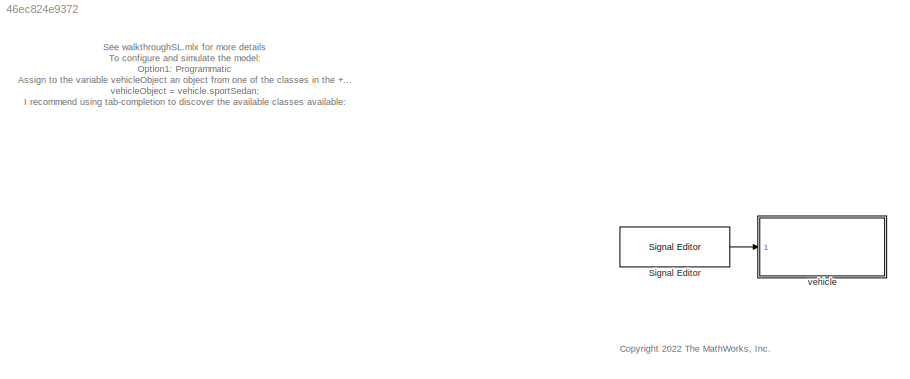
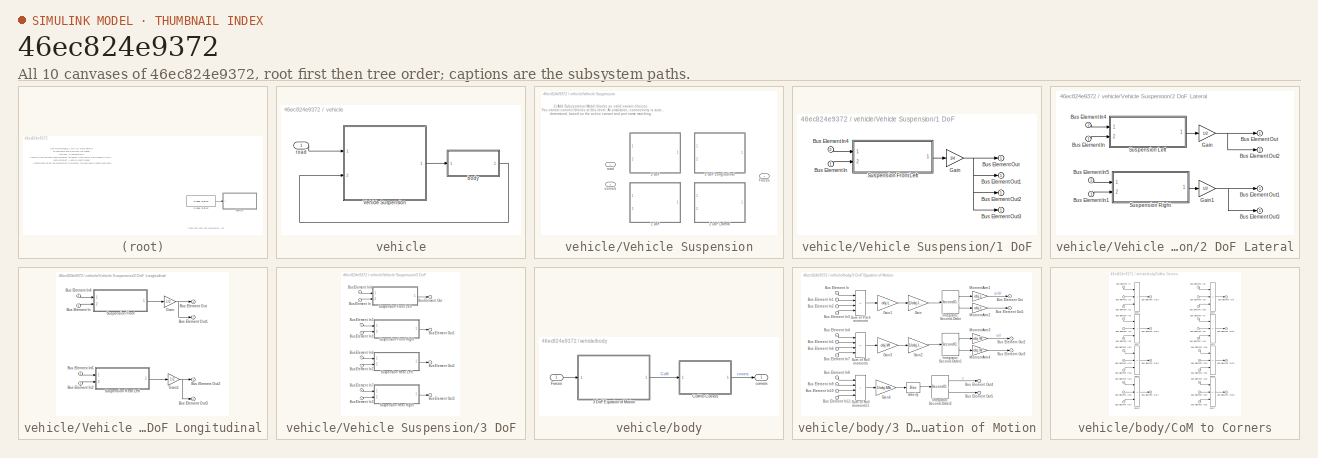
[diagram: thumbnail index - all 10 canvases of the model, root first then tree order]
MODEL slx_46ec824e9372
KIND model
CONFIG AbsTol = auto
CONFIG EnableMultiTasking = off
CONFIG FixedStep = auto
CONFIG MaxStep = 0.01
CONFIG MinStep = auto
CONFIG PreLoadFcn = vehicleObject = vehicle.sportSedan;\n
CONFIG RelTol = 1e-3
CONFIG SampleTimeConstraint = Unconstrained
CONFIG SolverName = VariableStepAuto
CONFIG StartTime = 0.0
CONFIG StopTime = 20
BLOCK [Reference] Signal Editor  REF=SignalEditorBlockLib/Signal Editor
  Ports = [0, 1]
  SourceBlock = SignalEditorBlockLib/Signal Editor
  SourceProductBaseCode = SL
  SourceType = SignalEditor
  UserDataPersistent = on
BLOCK [SubSystem] vehicle
  Ports = [1]
  RequestExecContextInheritance = off
BLOCK [SubSystem] vehicle/Vehicle Suspension
  AncestorBlock = suspensionLib/Vehicel Suspension
  LabelModeActiveChoice = suspension.threeDof
  Ports = [2, 1]
  RequestExecContextInheritance = off
  Variant = on
  VariantControlMode = label
BLOCK [SubSystem] vehicle/Vehicle Suspension/1 DoF
  Ports = [2, 1]
  RequestExecContextInheritance = off
  VariantControl = suspension.oneDof
BLOCK [Inport] vehicle/Vehicle Suspension/1 DoF/Bus Element In
BLOCK [Inport] vehicle/Vehicle Suspension/1 DoF/Bus Element In4
  Port = 2
BLOCK [Outport] vehicle/Vehicle Suspension/1 DoF/Bus Element Out
BLOCK [Outport] vehicle/Vehicle Suspension/1 DoF/Bus Element Out1
BLOCK [Outport] vehicle/Vehicle Suspension/1 DoF/Bus Element Out2
BLOCK [Outport] vehicle/Vehicle Suspension/1 DoF/Bus Element Out3
BLOCK [Gain] vehicle/Vehicle Suspension/1 DoF/Gain
  Gain = 1/4
BLOCK [SubSystem] vehicle/Vehicle Suspension/1 DoF/Suspension Front Left
  AttributesFormatString = %<obj>
  Ports = [2, 1]
  ReferencedSubsystem = suspension_ss
  RequestExecContextInheritance = off
  obj = obj.Suspension
BLOCK [SubSystem] vehicle/Vehicle Suspension/2 DoF Lateral
  Ports = [2, 1]
  RequestExecContextInheritance = off
  VariantControl = suspension.twoDofLateral
BLOCK [Inport] vehicle/Vehicle Suspension/2 DoF Lateral/Bus Element In
BLOCK [Inport] vehicle/Vehicle Suspension/2 DoF Lateral/Bus Element In1
BLOCK [Inport] vehicle/Vehicle Suspension/2 DoF Lateral/Bus Element In4
  Port = 2
BLOCK [Inport] vehicle/Vehicle Suspension/2 DoF Lateral/Bus Element In5
  Port = 2
BLOCK [Outport] vehicle/Vehicle Suspension/2 DoF Lateral/Bus Element Out
BLOCK [Outport] vehicle/Vehicle Suspension/2 DoF Lateral/Bus Element Out1
BLOCK [Outport] vehicle/Vehicle Suspension/2 DoF Lateral/Bus Element Out2
BLOCK [Outport] vehicle/Vehicle Suspension/2 DoF Lateral/Bus Element Out3
BLOCK [Gain] vehicle/Vehicle Suspension/2 DoF Lateral/Gain
  Gain = 1/2
BLOCK [Gain] vehicle/Vehicle Suspension/2 DoF Lateral/Gain1
  Gain = 1/2
BLOCK [SubSystem] vehicle/Vehicle Suspension/2 DoF Lateral/Suspension Left
  AttributesFormatString = %<obj>
  Ports = [2, 1]
  ReferencedSubsystem = suspension_ss
  RequestExecContextInheritance = off
  obj = obj.Left
BLOCK [SubSystem] vehicle/Vehicle Suspension/2 DoF Lateral/Suspension Right
  AttributesFormatString = %<obj>
  Ports = [2, 1]
  ReferencedSubsystem = suspension_ss
  RequestExecContextInheritance = off
  obj = obj.Right
BLOCK [SubSystem] vehicle/Vehicle Suspension/2 DoF Longitudinal
  Ports = [2, 1]
  RequestExecContextInheritance = off
  VariantControl = suspension.twoDofLongitudinal
BLOCK [Inport] vehicle/Vehicle Suspension/2 DoF Longitudinal/Bus Element In
BLOCK [Inport] vehicle/Vehicle Suspension/2 DoF Longitudinal/Bus Element In2
BLOCK [Inport] vehicle/Vehicle Suspension/2 DoF Longitudinal/Bus Element In4
  Port = 2
BLOCK [Inport] vehicle/Vehicle Suspension/2 DoF Longitudinal/Bus Element In6
  Port = 2
BLOCK [Outport] vehicle/Vehicle Suspension/2 DoF Longitudinal/Bus Element Out
BLOCK [Outport] vehicle/Vehicle Suspension/2 DoF Longitudinal/Bus Element Out1
BLOCK [Outport] vehicle/Vehicle Suspension/2 DoF Longitudinal/Bus Element Out2
BLOCK [Outport] vehicle/Vehicle Suspension/2 DoF Longitudinal/Bus Element Out3
BLOCK [Gain] vehicle/Vehicle Suspension/2 DoF Longitudinal/Gain
  Gain = 1/2
BLOCK [Gain] vehicle/Vehicle Suspension/2 DoF Longitudinal/Gain1
  Gain = 1/2
BLOCK [SubSystem] vehicle/Vehicle Suspension/2 DoF Longitudinal/Suspension Front
  AttributesFormatString = %<obj>
  Ports = [2, 1]
  ReferencedSubsystem = suspension_ss
  RequestExecContextInheritance = off
  obj = obj.Front
BLOCK [SubSystem] vehicle/Vehicle Suspension/2 DoF Longitudinal/Suspension Rear Left
  AttributesFormatString = %<obj>
  Ports = [2, 1]
  ReferencedSubsystem = suspension_ss
  RequestExecContextInheritance = off
  obj = obj.Rear
BLOCK [SubSystem] vehicle/Vehicle Suspension/3 DoF
  Ports = [2, 1]
  RequestExecContextInheritance = off
  VariantControl = suspension.threeDof
BLOCK [Inport] vehicle/Vehicle Suspension/3 DoF/Bus Element In
BLOCK [Inport] vehicle/Vehicle Suspension/3 DoF/Bus Element In1
BLOCK [Inport] vehicle/Vehicle Suspension/3 DoF/Bus Element In2
BLOCK [Inport] vehicle/Vehicle Suspension/3 DoF/Bus Element In3
BLOCK [Inport] vehicle/Vehicle Suspension/3 DoF/Bus Element In4
  Port = 2
BLOCK [Inport] vehicle/Vehicle Suspension/3 DoF/Bus Element In5
  Port = 2
BLOCK [Inport] vehicle/Vehicle Suspension/3 DoF/Bus Element In6
  Port = 2
BLOCK [Inport] vehicle/Vehicle Suspension/3 DoF/Bus Element In7
  Port = 2
BLOCK [Outport] vehicle/Vehicle Suspension/3 DoF/Bus Element Out
BLOCK [Outport] vehicle/Vehicle Suspension/3 DoF/Bus Element Out1
BLOCK [Outport] vehicle/Vehicle Suspension/3 DoF/Bus Element Out2
BLOCK [Outport] vehicle/Vehicle Suspension/3 DoF/Bus Element Out3
BLOCK [SubSystem] vehicle/Vehicle Suspension/3 DoF/Suspension Front Left
  AttributesFormatString = %<obj>
  Ports = [2, 1]
  ReferencedSubsystem = suspension_ss
  RequestExecContextInheritance = off
  obj = obj.FrontLeft
BLOCK [SubSystem] vehicle/Vehicle Suspension/3 DoF/Suspension Front Right
  AttributesFormatString = %<obj>
  Ports = [2, 1]
  ReferencedSubsystem = suspension_ss
  RequestExecContextInheritance = off
  obj = obj.FrontRight
BLOCK [SubSystem] vehicle/Vehicle Suspension/3 DoF/Suspension Rear Left
  AttributesFormatString = %<obj>
  Ports = [2, 1]
  ReferencedSubsystem = suspension_ss
  RequestExecContextInheritance = off
  obj = obj.RearLeft
BLOCK [SubSystem] vehicle/Vehicle Suspension/3 DoF/Suspension Rear Right
  AttributesFormatString = %<obj>
  Ports = [2, 1]
  ReferencedSubsystem = suspension_ss
  RequestExecContextInheritance = off
  obj = obj.RearRight
BLOCK [Outport] vehicle/Vehicle Suspension/Forces
BLOCK [Inport] vehicle/Vehicle Suspension/corners
  Port = 2
BLOCK [Inport] vehicle/Vehicle Suspension/road
BLOCK [SubSystem] vehicle/body
  Ports = [1, 1]
  RequestExecContextInheritance = off
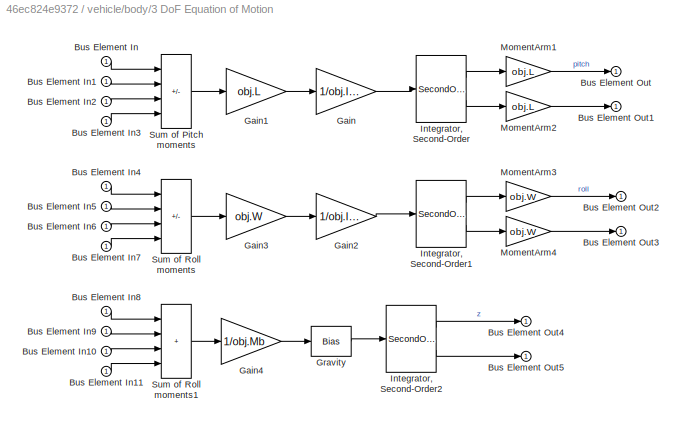
BLOCK [SubSystem] vehicle/body/3 DoF Equation of Motion
  Ports = [1, 1]
  RequestExecContextInheritance = off
BLOCK [Inport] vehicle/body/3 DoF Equation of Motion/Bus Element In
BLOCK [Inport] vehicle/body/3 DoF Equation of Motion/Bus Element In1
BLOCK [Inport] vehicle/body/3 DoF Equation of Motion/Bus Element In10
BLOCK [Inport] vehicle/body/3 DoF Equation of Motion/Bus Element In11
BLOCK [Inport] vehicle/body/3 DoF Equation of Motion/Bus Element In2
BLOCK [Inport] vehicle/body/3 DoF Equation of Motion/Bus Element In3
BLOCK [Inport] vehicle/body/3 DoF Equation of Motion/Bus Element In4
BLOCK [Inport] vehicle/body/3 DoF Equation of Motion/Bus Element In5
BLOCK [Inport] vehicle/body/3 DoF Equation of Motion/Bus Element In6
BLOCK [Inport] vehicle/body/3 DoF Equation of Motion/Bus Element In7
BLOCK [Inport] vehicle/body/3 DoF Equation of Motion/Bus Element In8
BLOCK [Inport] vehicle/body/3 DoF Equation of Motion/Bus Element In9
BLOCK [Outport] vehicle/body/3 DoF Equation of Motion/Bus Element Out
BLOCK [Outport] vehicle/body/3 DoF Equation of Motion/Bus Element Out1
BLOCK [Outport] vehicle/body/3 DoF Equation of Motion/Bus Element Out2
BLOCK [Outport] vehicle/body/3 DoF Equation of Motion/Bus Element Out3
BLOCK [Outport] vehicle/body/3 DoF Equation of Motion/Bus Element Out4
BLOCK [Outport] vehicle/body/3 DoF Equation of Motion/Bus Element Out5
BLOCK [Gain] vehicle/body/3 DoF Equation of Motion/Gain
  Gain = 1/obj.Iyy
BLOCK [Gain] vehicle/body/3 DoF Equation of Motion/Gain1
  Gain = obj.L
BLOCK [Gain] vehicle/body/3 DoF Equation of Motion/Gain2
  Gain = 1/obj.Ixx
BLOCK [Gain] vehicle/body/3 DoF Equation of Motion/Gain3
  Gain = obj.W
BLOCK [Gain] vehicle/body/3 DoF Equation of Motion/Gain4
  Gain = 1/obj.Mb
BLOCK [Bias] vehicle/body/3 DoF Equation of Motion/Gravity
  Bias = -9.81
  SaturateOnIntegerOverflow = off
BLOCK [SecondOrderIntegrator] vehicle/body/3 DoF Equation of Motion/Integrator, Second-Order
  Ports = [1, 2]
BLOCK [SecondOrderIntegrator] vehicle/body/3 DoF Equation of Motion/Integrator, Second-Order1
  Ports = [1, 2]
BLOCK [SecondOrderIntegrator] vehicle/body/3 DoF Equation of Motion/Integrator, Second-Order2
  Ports = [1, 2]
BLOCK [Gain] vehicle/body/3 DoF Equation of Motion/MomentArm1
  Gain = obj.L
  OutDataTypeStr = Inherit: Same as input
  ParamDataTypeStr = Inherit: Same as input
  SaturateOnIntegerOverflow = on
BLOCK [Gain] vehicle/body/3 DoF Equation of Motion/MomentArm2
  Gain = obj.L
  OutDataTypeStr = Inherit: Same as input
  ParamDataTypeStr = Inherit: Same as input
  SaturateOnIntegerOverflow = on
BLOCK [Gain] vehicle/body/3 DoF Equation of Motion/MomentArm3
  Gain = obj.W
  OutDataTypeStr = Inherit: Same as input
  ParamDataTypeStr = Inherit: Same as input
  SaturateOnIntegerOverflow = on
BLOCK [Gain] vehicle/body/3 DoF Equation of Motion/MomentArm4
  Gain = obj.W
  OutDataTypeStr = Inherit: Same as input
  ParamDataTypeStr = Inherit: Same as input
  SaturateOnIntegerOverflow = on
BLOCK [Sum] vehicle/body/3 DoF Equation of Motion/Sum of Pitch moments
  IconShape = rectangular
  Inputs = ++--
  Ports = [4, 1]
BLOCK [Sum] vehicle/body/3 DoF Equation of Motion/Sum of Roll moments
  IconShape = rectangular
  Inputs = +-+-
  Ports = [4, 1]
BLOCK [Sum] vehicle/body/3 DoF Equation of Motion/Sum of Roll moments1
  IconShape = rectangular
  Inputs = ++++
  Ports = [4, 1]
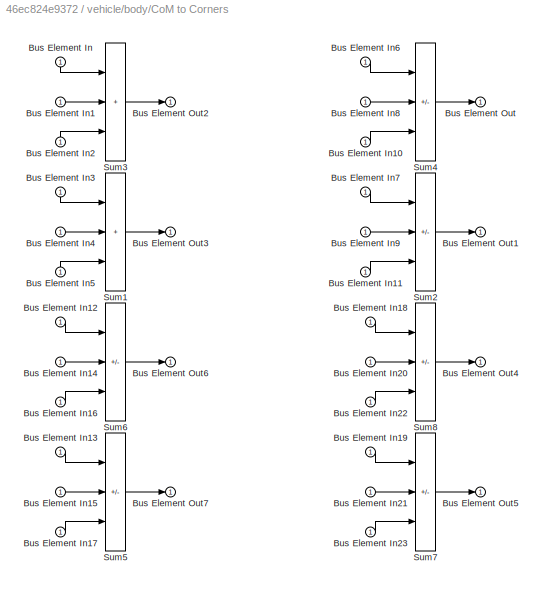
BLOCK [SubSystem] vehicle/body/CoM to Corners
  Ports = [1, 1]
  RequestExecContextInheritance = off
BLOCK [Inport] vehicle/body/CoM to Corners/Bus Element In
BLOCK [Inport] vehicle/body/CoM to Corners/Bus Element In1
BLOCK [Inport] vehicle/body/CoM to Corners/Bus Element In10
BLOCK [Inport] vehicle/body/CoM to Corners/Bus Element In11
BLOCK [Inport] vehicle/body/CoM to Corners/Bus Element In12
BLOCK [Inport] vehicle/body/CoM to Corners/Bus Element In13
BLOCK [Inport] vehicle/body/CoM to Corners/Bus Element In14
BLOCK [Inport] vehicle/body/CoM to Corners/Bus Element In15
BLOCK [Inport] vehicle/body/CoM to Corners/Bus Element In16
BLOCK [Inport] vehicle/body/CoM to Corners/Bus Element In17
BLOCK [Inport] vehicle/body/CoM to Corners/Bus Element In18
BLOCK [Inport] vehicle/body/CoM to Corners/Bus Element In19
BLOCK [Inport] vehicle/body/CoM to Corners/Bus Element In2
BLOCK [Inport] vehicle/body/CoM to Corners/Bus Element In20
BLOCK [Inport] vehicle/body/CoM to Corners/Bus Element In21
BLOCK [Inport] vehicle/body/CoM to Corners/Bus Element In22
BLOCK [Inport] vehicle/body/CoM to Corners/Bus Element In23
BLOCK [Inport] vehicle/body/CoM to Corners/Bus Element In3
BLOCK [Inport] vehicle/body/CoM to Corners/Bus Element In4
BLOCK [Inport] vehicle/body/CoM to Corners/Bus Element In5
BLOCK [Inport] vehicle/body/CoM to Corners/Bus Element In6
BLOCK [Inport] vehicle/body/CoM to Corners/Bus Element In7
BLOCK [Inport] vehicle/body/CoM to Corners/Bus Element In8
BLOCK [Inport] vehicle/body/CoM to Corners/Bus Element In9
BLOCK [Outport] vehicle/body/CoM to Corners/Bus Element Out
BLOCK [Outport] vehicle/body/CoM to Corners/Bus Element Out1
BLOCK [Outport] vehicle/body/CoM to Corners/Bus Element Out2
BLOCK [Outport] vehicle/body/CoM to Corners/Bus Element Out3
BLOCK [Outport] vehicle/body/CoM to Corners/Bus Element Out4
BLOCK [Outport] vehicle/body/CoM to Corners/Bus Element Out5
BLOCK [Outport] vehicle/body/CoM to Corners/Bus Element Out6
BLOCK [Outport] vehicle/body/CoM to Corners/Bus Element Out7
BLOCK [Sum] vehicle/body/CoM to Corners/Sum1
  IconShape = rectangular
  InputSameDT = on
  Inputs = +++
  OutDataTypeStr = Inherit: Same as first input
  Ports = [3, 1]
  SaturateOnIntegerOverflow = on
BLOCK [Sum] vehicle/body/CoM to Corners/Sum2
  IconShape = rectangular
  InputSameDT = on
  Inputs = +-+
  OutDataTypeStr = Inherit: Same as first input
  Ports = [3, 1]
  SaturateOnIntegerOverflow = on
BLOCK [Sum] vehicle/body/CoM to Corners/Sum3
  IconShape = rectangular
  InputSameDT = on
  Inputs = +++
  OutDataTypeStr = Inherit: Same as first input
  Ports = [3, 1]
  SaturateOnIntegerOverflow = on
BLOCK [Sum] vehicle/body/CoM to Corners/Sum4
  IconShape = rectangular
  InputSameDT = on
  Inputs = +-+
  OutDataTypeStr = Inherit: Same as first input
  Ports = [3, 1]
  SaturateOnIntegerOverflow = on
BLOCK [Sum] vehicle/body/CoM to Corners/Sum5
  IconShape = rectangular
  InputSameDT = on
  Inputs = -++
  OutDataTypeStr = Inherit: Same as first input
  Ports = [3, 1]
  SaturateOnIntegerOverflow = on
BLOCK [Sum] vehicle/body/CoM to Corners/Sum6
  IconShape = rectangular
  InputSameDT = on
  Inputs = -++
  OutDataTypeStr = Inherit: Same as first input
  Ports = [3, 1]
  SaturateOnIntegerOverflow = on
BLOCK [Sum] vehicle/body/CoM to Corners/Sum7
  IconShape = rectangular
  InputSameDT = on
  Inputs = --+
  OutDataTypeStr = Inherit: Same as first input
  Ports = [3, 1]
  SaturateOnIntegerOverflow = on
BLOCK [Sum] vehicle/body/CoM to Corners/Sum8
  IconShape = rectangular
  InputSameDT = on
  Inputs = --+
  OutDataTypeStr = Inherit: Same as first input
  Ports = [3, 1]
  SaturateOnIntegerOverflow = on
BLOCK [Inport] vehicle/body/Forces
BLOCK [Outport] vehicle/body/corners
BLOCK [Inport] vehicle/road
ANNOTATION (root): See walkthroughSL.mlx for more details To configure and simulate the model: Option1: Programmatic Assign to the variable vehicleObject an object from one of the classes in the +vehicle package. For example: vehicleObject = vehicle.sportSedan; I recommend using tab-completion to discover the available classes available: Option 2: Interactive App Launch the system configurator app: vehicleObject = v...<+45ch>
ANNOTATION (root): <copyright redacted>
ANNOTATION vehicle/Vehicle Suspension: 1) Add Subsystem or Model blocks as valid variant choices. 2) You cannot connect blocks at this level. At simulation, connectivity is automatically determined, based on the active variant and port name matching.
LINE Signal Editor:1 -> vehicle:1
LINE vehicle/Vehicle Suspension:1 -> vehicle/body:1
LINE vehicle/body/3 DoF Equation of Motion/Bus Element In10:1 -> vehicle/body/3 DoF Equation of Motion/Sum of Roll moments1:3
LINE vehicle/body/3 DoF Equation of Motion/Bus Element In11:1 -> vehicle/body/3 DoF Equation of Motion/Sum of Roll moments1:4
LINE vehicle/body/3 DoF Equation of Motion/Bus Element In1:1 -> vehicle/body/3 DoF Equation of Motion/Sum of Pitch moments:2
LINE vehicle/body/3 DoF Equation of Motion/Bus Element In2:1 -> vehicle/body/3 DoF Equation of Motion/Sum of Pitch moments:3
LINE vehicle/body/3 DoF Equation of Motion/Bus Element In3:1 -> vehicle/body/3 DoF Equation of Motion/Sum of Pitch moments:4
LINE vehicle/body/3 DoF Equation of Motion/Bus Element In4:1 -> vehicle/body/3 DoF Equation of Motion/Sum of Roll moments:1
LINE vehicle/body/3 DoF Equation of Motion/Bus Element In5:1 -> vehicle/body/3 DoF Equation of Motion/Sum of Roll moments:2
LINE vehicle/body/3 DoF Equation of Motion/Bus Element In6:1 -> vehicle/body/3 DoF Equation of Motion/Sum of Roll moments:3
LINE vehicle/body/3 DoF Equation of Motion/Bus Element In7:1 -> vehicle/body/3 DoF Equation of Motion/Sum of Roll moments:4
LINE vehicle/body/3 DoF Equation of Motion/Bus Element In8:1 -> vehicle/body/3 DoF Equation of Motion/Sum of Roll moments1:1
LINE vehicle/body/3 DoF Equation of Motion/Bus Element In9:1 -> vehicle/body/3 DoF Equation of Motion/Sum of Roll moments1:2
LINE vehicle/body/3 DoF Equation of Motion/Bus Element In:1 -> vehicle/body/3 DoF Equation of Motion/Sum of Pitch moments:1
LINE vehicle/body/3 DoF Equation of Motion/Gain1:1 -> vehicle/body/3 DoF Equation of Motion/Gain:1
LINE vehicle/body/3 DoF Equation of Motion/Gain2:1 -> vehicle/body/3 DoF Equation of Motion/Integrator, Second-Order1:1
LINE vehicle/body/3 DoF Equation of Motion/Gain3:1 -> vehicle/body/3 DoF Equation of Motion/Gain2:1
LINE vehicle/body/3 DoF Equation of Motion/Gain4:1 -> vehicle/body/3 DoF Equation of Motion/Gravity:1
LINE vehicle/body/3 DoF Equation of Motion/Gain:1 -> vehicle/body/3 DoF Equation of Motion/Integrator, Second-Order:1
LINE vehicle/body/3 DoF Equation of Motion/Gravity:1 -> vehicle/body/3 DoF Equation of Motion/Integrator, Second-Order2:1
LINE vehicle/body/3 DoF Equation of Motion/Integrator, Second-Order1:1 -> vehicle/body/3 DoF Equation of Motion/MomentArm3:1
LINE vehicle/body/3 DoF Equation of Motion/Integrator, Second-Order1:2 -> vehicle/body/3 DoF Equation of Motion/MomentArm4:1
LINE vehicle/body/3 DoF Equation of Motion/Integrator, Second-Order2:1 -> vehicle/body/3 DoF Equation of Motion/Bus Element Out4:1
LINE vehicle/body/3 DoF Equation of Motion/Integrator, Second-Order2:2 -> vehicle/body/3 DoF Equation of Motion/Bus Element Out5:1
LINE vehicle/body/3 DoF Equation of Motion/Integrator, Second-Order:1 -> vehicle/body/3 DoF Equation of Motion/MomentArm1:1
LINE vehicle/body/3 DoF Equation of Motion/Integrator, Second-Order:2 -> vehicle/body/3 DoF Equation of Motion/MomentArm2:1
LINE vehicle/body/3 DoF Equation of Motion/MomentArm1:1 -> vehicle/body/3 DoF Equation of Motion/Bus Element Out:1
LINE vehicle/body/3 DoF Equation of Motion/MomentArm2:1 -> vehicle/body/3 DoF Equation of Motion/Bus Element Out1:1
LINE vehicle/body/3 DoF Equation of Motion/MomentArm3:1 -> vehicle/body/3 DoF Equation of Motion/Bus Element Out2:1
LINE vehicle/body/3 DoF Equation of Motion/MomentArm4:1 -> vehicle/body/3 DoF Equation of Motion/Bus Element Out3:1
LINE vehicle/body/3 DoF Equation of Motion/Sum of Pitch moments:1 -> vehicle/body/3 DoF Equation of Motion/Gain1:1
LINE vehicle/body/3 DoF Equation of Motion/Sum of Roll moments1:1 -> vehicle/body/3 DoF Equation of Motion/Gain4:1
LINE vehicle/body/3 DoF Equation of Motion/Sum of Roll moments:1 -> vehicle/body/3 DoF Equation of Motion/Gain3:1
LINE vehicle/body/3 DoF Equation of Motion:1 -> vehicle/body/CoM to Corners:1
LINE vehicle/body/CoM to Corners/Bus Element In10:1 -> vehicle/body/CoM to Corners/Sum4:3
LINE vehicle/body/CoM to Corners/Bus Element In11:1 -> vehicle/body/CoM to Corners/Sum2:3
LINE vehicle/body/CoM to Corners/Bus Element In12:1 -> vehicle/body/CoM to Corners/Sum6:1
LINE vehicle/body/CoM to Corners/Bus Element In13:1 -> vehicle/body/CoM to Corners/Sum5:1
LINE vehicle/body/CoM to Corners/Bus Element In14:1 -> vehicle/body/CoM to Corners/Sum6:2
LINE vehicle/body/CoM to Corners/Bus Element In15:1 -> vehicle/body/CoM to Corners/Sum5:2
LINE vehicle/body/CoM to Corners/Bus Element In16:1 -> vehicle/body/CoM to Corners/Sum6:3
LINE vehicle/body/CoM to Corners/Bus Element In17:1 -> vehicle/body/CoM to Corners/Sum5:3
LINE vehicle/body/CoM to Corners/Bus Element In18:1 -> vehicle/body/CoM to Corners/Sum8:1
LINE vehicle/body/CoM to Corners/Bus Element In19:1 -> vehicle/body/CoM to Corners/Sum7:1
LINE vehicle/body/CoM to Corners/Bus Element In1:1 -> vehicle/body/CoM to Corners/Sum3:2
LINE vehicle/body/CoM to Corners/Bus Element In20:1 -> vehicle/body/CoM to Corners/Sum8:2
LINE vehicle/body/CoM to Corners/Bus Element In21:1 -> vehicle/body/CoM to Corners/Sum7:2
LINE vehicle/body/CoM to Corners/Bus Element In22:1 -> vehicle/body/CoM to Corners/Sum8:3
LINE vehicle/body/CoM to Corners/Bus Element In23:1 -> vehicle/body/CoM to Corners/Sum7:3
LINE vehicle/body/CoM to Corners/Bus Element In2:1 -> vehicle/body/CoM to Corners/Sum3:3
LINE vehicle/body/CoM to Corners/Bus Element In3:1 -> vehicle/body/CoM to Corners/Sum1:1
LINE vehicle/body/CoM to Corners/Bus Element In4:1 -> vehicle/body/CoM to Corners/Sum1:2
LINE vehicle/body/CoM to Corners/Bus Element In5:1 -> vehicle/body/CoM to Corners/Sum1:3
LINE vehicle/body/CoM to Corners/Bus Element In6:1 -> vehicle/body/CoM to Corners/Sum4:1
LINE vehicle/body/CoM to Corners/Bus Element In7:1 -> vehicle/body/CoM to Corners/Sum2:1
LINE vehicle/body/CoM to Corners/Bus Element In8:1 -> vehicle/body/CoM to Corners/Sum4:2
LINE vehicle/body/CoM to Corners/Bus Element In9:1 -> vehicle/body/CoM to Corners/Sum2:2
LINE vehicle/body/CoM to Corners/Bus Element In:1 -> vehicle/body/CoM to Corners/Sum3:1
LINE vehicle/body/CoM to Corners/Sum1:1 -> vehicle/body/CoM to Corners/Bus Element Out3:1
LINE vehicle/body/CoM to Corners/Sum2:1 -> vehicle/body/CoM to Corners/Bus Element Out1:1
LINE vehicle/body/CoM to Corners/Sum3:1 -> vehicle/body/CoM to Corners/Bus Element Out2:1
LINE vehicle/body/CoM to Corners/Sum4:1 -> vehicle/body/CoM to Corners/Bus Element Out:1
LINE vehicle/body/CoM to Corners/Sum5:1 -> vehicle/body/CoM to Corners/Bus Element Out7:1
LINE vehicle/body/CoM to Corners/Sum6:1 -> vehicle/body/CoM to Corners/Bus Element Out6:1
LINE vehicle/body/CoM to Corners/Sum7:1 -> vehicle/body/CoM to Corners/Bus Element Out5:1
LINE vehicle/body/CoM to Corners/Sum8:1 -> vehicle/body/CoM to Corners/Bus Element Out4:1
LINE vehicle/body/CoM to Corners:1 -> vehicle/body/corners:1
LINE vehicle/body/Forces:1 -> vehicle/body/3 DoF Equation of Motion:1
LINE vehicle/body:1 -> vehicle/Vehicle Suspension:2
LINE vehicle/road:1 -> vehicle/Vehicle Suspension:1
